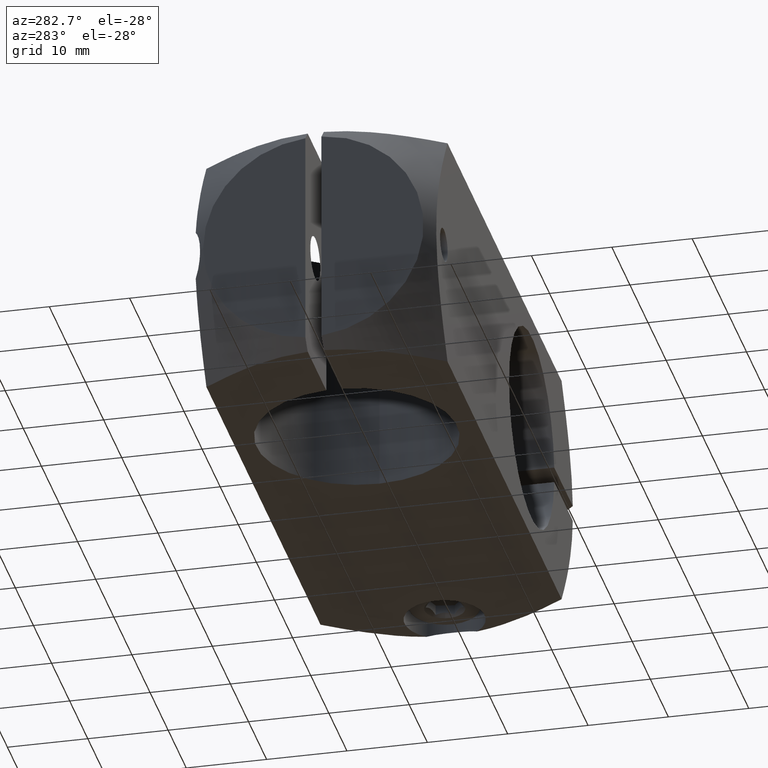
[diagram: clean part render]
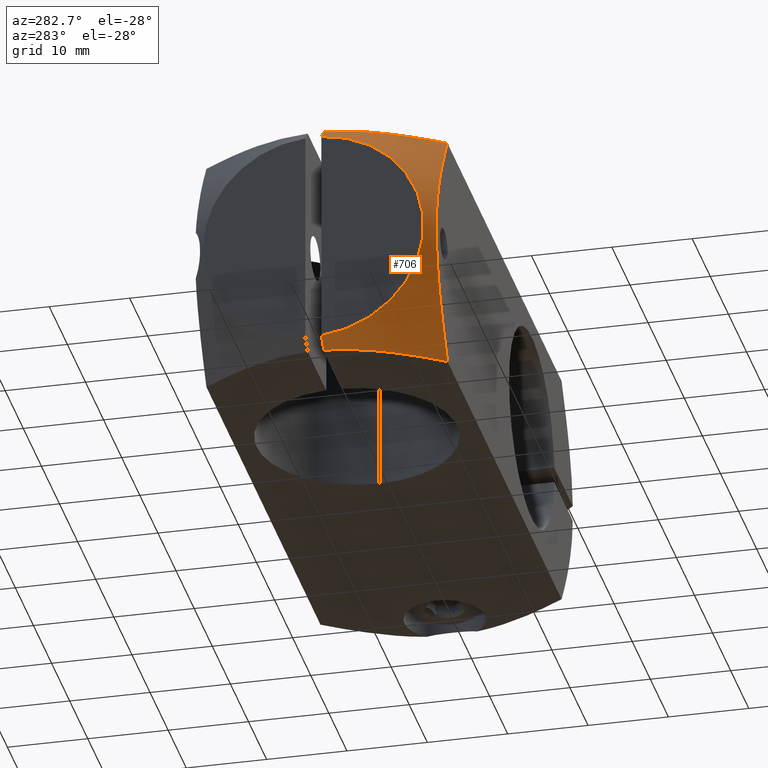
[diagram: same view with one face highlighted and labeled with its STEP entity id]
A machine part, auxiliary view. The second image highlights one B-rep face of the part: STEP entity #706.
In plain terms, the highlighted conical surface has half-angle 45 deg.
Its self-contained STEP definition (entity closure, byte-faithful):
#71 = CARTESIAN_POINT ( 'NONE',  ( -19.23075643469382001, -10.13421942971678646, 63.16369555892573118 ) ) ;
#144 = CARTESIAN_POINT ( 'NONE',  ( -16.08798089569371825, -23.48969352049322978, 88.56406805115727821 ) ) ;
#150 = ORIENTED_EDGE ( 'NONE', *, *, #1954, .F. ) ;
#156 = CARTESIAN_POINT ( 'NONE',  ( -19.09456608968422131, -11.10286215911460417, 93.16369555892569565 ) ) ;
#228 = AXIS2_PLACEMENT_3D ( 'NONE', #287, #330, #1007 ) ;
#244 = CARTESIAN_POINT ( 'NONE',  ( -19.28395444628326771, -9.489658271507050102, 63.16369555892571697 ) ) ;
#253 = CARTESIAN_POINT ( 'NONE',  ( -18.18715098107058381, -14.53567931633557642, 63.16369555892573118 ) ) ;
#284 = CARTESIAN_POINT ( 'NONE',  ( -18.93373410550602998, -23.48969352049323689, 81.59341561462726133 ) ) ;
#287 = CARTESIAN_POINT ( 'NONE',  ( -20.60404504437318707, -8.489693520493247547, 78.16369555892570986 ) ) ;
#308 = CARTESIAN_POINT ( 'NONE',  ( -17.05234078955479049, -23.48969352049324399, 69.59749015704443309 ) ) ;
#310 = CARTESIAN_POINT ( 'NONE',  ( -16.84512115654323594, -17.46362567059150095, 93.16369555892572407 ) ) ;
#330 = DIRECTION ( 'NONE',  ( -1.000000000000000000, -2.017409523771872762E-16, -1.127807741219663211E-16 ) ) ;
#332 = CARTESIAN_POINT ( 'NONE',  ( -20.60404504437318707, -9.489658271507050102, 91.84039175949929756 ) ) ;
#347 = VERTEX_POINT ( 'NONE', #244 ) ;
#380 = CARTESIAN_POINT ( 'NONE',  ( -13.10404504437317996, -23.48969352049323334, 63.16369555892567433 ) ) ;
#434 = DIRECTION ( 'NONE',  ( 1.000000000000000000, 2.017409523771872762E-16, 1.127807741219663211E-16 ) ) ;
#455 = ORIENTED_EDGE ( 'NONE', *, *, #2237, .F. ) ;
#472 = CARTESIAN_POINT ( 'NONE',  ( -20.16406686450731200, -9.489658271507050102, 64.04584674377032627 ) ) ;
#479 = VERTEX_POINT ( 'NONE', #508 ) ;
#483 = CARTESIAN_POINT ( 'NONE',  ( -18.91037143832029699, -12.06267895146951474, 93.16369555892573828 ) ) ;
#508 = CARTESIAN_POINT ( 'NONE',  ( -13.10404504437317996, -23.48969352049323334, 63.16369555892567433 ) ) ;
#646 = CARTESIAN_POINT ( 'NONE',  ( -13.10404504437318707, -23.48969352049328307, 93.16369555892569565 ) ) ;
#659 = CARTESIAN_POINT ( 'NONE',  ( -16.07493411379757120, -23.48969352049323689, 67.76945896387782398 ) ) ;
#706 = ADVANCED_FACE ( 'NONE', ( #2146 ), #825, .T. ) ;
#756 = B_SPLINE_CURVE_WITH_KNOTS ( 'NONE', 3,
 ( #2037, #1704, #1319, #2218, #2028, #830, #310, #1355, #1848, #1507, #483, #156, #1482, #1827, #1172, #983 ),
 .UNSPECIFIED., .F., .F.,
 ( 4, 2, 2, 2, 2, 2, 2, 4 ),
 ( 0.04116296883264590478, 0.04502619078356938365, 0.04695780175903112308, 0.04888941273449286251, 0.05275263468541632750, 0.05468424566087806693, 0.05565005114860892971, 0.05661585663633979248 ),
 .UNSPECIFIED. ) ;
#789 = CARTESIAN_POINT ( 'NONE',  ( -16.84512115654324305, -17.46362567059148319, 63.16369555892573118 ) ) ;
#797 = CARTESIAN_POINT ( 'NONE',  ( -18.75152712022383739, -12.68911683556057035, 63.16369555892571697 ) ) ;
#804 = CARTESIAN_POINT ( 'NONE',  ( -19.26952282696359475, -23.48969352049324399, 79.54082806754804835 ) ) ;
#825 = CONICAL_SURFACE ( 'NONE', #1014, 21.21320343559644428, 0.7853981633974482790 ) ;
#830 = CARTESIAN_POINT ( 'NONE',  ( -16.54239402288973437, -18.03775945732613195, 93.16369555892570986 ) ) ;
#832 = CARTESIAN_POINT ( 'NONE',  ( -19.28395444628327482, -9.489658271507050102, 93.16369555892570986 ) ) ;
#840 = CARTESIAN_POINT ( 'NONE',  ( -19.07068434195346285, -23.48969352049324755, 80.91472866774033434 ) ) ;
#858 = CARTESIAN_POINT ( 'NONE',  ( -20.16406659355164877, -9.489658271507050102, 92.28154464576005012 ) ) ;
#883 = B_SPLINE_CURVE_WITH_KNOTS ( 'NONE', 3,
 ( #2015, #1506, #472, #2192 ),
 .UNSPECIFIED., .F., .F.,
 ( 4, 4 ),
 ( 9.888395924851501987E-07, 0.001870126274407347489 ),
 .UNSPECIFIED. ) ;
#943 = EDGE_CURVE ( 'NONE', #347, #2239, #883, .T. ) ;
#983 = CARTESIAN_POINT ( 'NONE',  ( -19.28395444628327482, -9.489658271507050102, 93.16369555892570986 ) ) ;
#1003 = CARTESIAN_POINT ( 'NONE',  ( -19.31697803404255609, -23.48969352049324044, 78.85493117571076027 ) ) ;
#1007 = DIRECTION ( 'NONE',  ( 2.530004727376607490E-16, -1.000000000000000000, 0.000000000000000000 ) ) ;
#1014 = AXIS2_PLACEMENT_3D ( 'NONE', #1640, #434, #1453 ) ;
#1059 = CARTESIAN_POINT ( 'NONE',  ( -20.60404504437318707, -9.489658271507050102, 91.84039175949929756 ) ) ;
#1116 = CARTESIAN_POINT ( 'NONE',  ( -17.69489535768492416, -15.72347008851798122, 63.16369555892571697 ) ) ;
#1117 = ORIENTED_EDGE ( 'NONE', *, *, #1768, .F. ) ;
#1134 = CARTESIAN_POINT ( 'NONE',  ( -18.91037143832027922, -12.06267895146950941, 63.16369555892571697 ) ) ;
#1155 = CARTESIAN_POINT ( 'NONE',  ( -19.31751661004394194, -23.48969352049324044, 77.48424769733271944 ) ) ;
#1158 = B_SPLINE_CURVE_WITH_KNOTS ( 'NONE', 3,
 ( #332, #858, #2234, #832 ),
 .UNSPECIFIED., .F., .F.,
 ( 4, 4 ),
 ( 0.03956520033644173734, 0.04145065740465224413 ),
 .UNSPECIFIED. ) ;
#1172 = CARTESIAN_POINT ( 'NONE',  ( -19.26252145620419398, -9.811878071308226978, 93.16369555892573828 ) ) ;
#1180 = CARTESIAN_POINT ( 'NONE',  ( -16.76147640109827108, -23.48969352049323689, 87.35124132136520814 ) ) ;
#1230 = CARTESIAN_POINT ( 'NONE',  ( -19.28395444628327482, -9.489658271507050102, 93.16369555892570986 ) ) ;
#1252 = CARTESIAN_POINT ( 'NONE',  ( -14.56348702612061707, -21.37208450014082928, 63.16369555892573118 ) ) ;
#1272 = B_SPLINE_CURVE_WITH_KNOTS ( 'NONE', 3,
 ( #380, #1600, #1252, #1934, #1959, #1790, #789, #1116, #253, #797, #1134, #1472, #1800, #71, #1623, #2156 ),
 .UNSPECIFIED., .F., .F.,
 ( 4, 2, 2, 2, 2, 2, 2, 4 ),
 ( 0.04116296883264594642, 0.04502619078356940446, 0.04695780175903113696, 0.04888941273449286251, 0.05275263468541632750, 0.05468424566087806693, 0.05565005114860892971, 0.05661585663633979942 ),
 .UNSPECIFIED. ) ;
#1316 = CARTESIAN_POINT ( 'NONE',  ( -16.73795339544827243, -23.48969352049323689, 68.98275134668577380 ) ) ;
#1319 = CARTESIAN_POINT ( 'NONE',  ( -14.56348702612060464, -21.37208450014085770, 93.16369555892570986 ) ) ;
#1327 = CARTESIAN_POINT ( 'NONE',  ( -18.94613330604531498, -23.48969352049324044, 74.74534115799069411 ) ) ;
#1342 = CARTESIAN_POINT ( 'NONE',  ( -15.72835441112407295, -23.48969352049323334, 67.17450752139588133 ) ) ;
#1351 = CARTESIAN_POINT ( 'NONE',  ( -19.08543292920531442, -23.48969352049324399, 75.43096249967875622 ) ) ;
#1355 = CARTESIAN_POINT ( 'NONE',  ( -17.69489535768491351, -15.72347008851799899, 93.16369555892569565 ) ) ;
#1453 = DIRECTION ( 'NONE',  ( -1.635512977795597602E-16, 1.000000000000000000, 0.000000000000000000 ) ) ;
#1472 = CARTESIAN_POINT ( 'NONE',  ( -19.09456608968420710, -11.10286215911460950, 63.16369555892570276 ) ) ;
#1479 = CARTESIAN_POINT ( 'NONE',  ( -19.12919287430330684, -23.48969352049323689, 80.57048693653919713 ) ) ;
#1482 = CARTESIAN_POINT ( 'NONE',  ( -19.14690413195883423, -10.77914124235996951, 93.16369555892573828 ) ) ;
#1490 = CARTESIAN_POINT ( 'NONE',  ( -20.60404504437318707, -9.489658271507050102, 64.48699935835210795 ) ) ;
#1502 = CARTESIAN_POINT ( 'NONE',  ( -14.65574553332553265, -23.48969352049323689, 90.90874359488579159 ) ) ;
#1506 = CARTESIAN_POINT ( 'NONE',  ( -19.72403208669276964, -9.489658271507050102, 63.60474999665417783 ) ) ;
#1507 = CARTESIAN_POINT ( 'NONE',  ( -18.75152712022382673, -12.68911683556057923, 93.16369555892569565 ) ) ;
#1514 = CARTESIAN_POINT ( 'NONE',  ( -18.41746166372543669, -23.48969352049322978, 83.59017135445326119 ) ) ;
#1522 = CARTESIAN_POINT ( 'NONE',  ( -17.92661269750189490, -23.48969352049324399, 71.46561441070045362 ) ) ;
#1527 = CARTESIAN_POINT ( 'NONE',  ( -13.10404504437318707, -23.48969352049328307, 93.16369555892569565 ) ) ;
#1600 = CARTESIAN_POINT ( 'NONE',  ( -13.84615402420302388, -22.44019293645905577, 63.16369555892573118 ) ) ;
#1623 = CARTESIAN_POINT ( 'NONE',  ( -19.26252145620419398, -9.811878071308221649, 63.16369555892574539 ) ) ;
#1626 = VERTEX_POINT ( 'NONE', #1527 ) ;
#1634 = EDGE_LOOP ( 'NONE', ( #1117, #455, #1944, #1857, #150, #1801 ) ) ;
#1640 = CARTESIAN_POINT ( 'NONE',  ( -13.10404504437318707, -8.489693520493245771, 78.16369555892570986 ) ) ;
#1646 = EDGE_CURVE ( 'NONE', #2044, #2067, #1158, .T. ) ;
#1649 = CARTESIAN_POINT ( 'NONE',  ( -18.85520218227048872, -23.48969352049324399, 81.92900954112319312 ) ) ;
#1657 = CARTESIAN_POINT ( 'NONE',  ( -14.65423390939095327, -23.48969352049324044, 65.41633402453393842 ) ) ;
#1679 = CARTESIAN_POINT ( 'NONE',  ( -13.10404504437317996, -23.48969352049323334, 63.16369555892567433 ) ) ;
#1704 = CARTESIAN_POINT ( 'NONE',  ( -13.84615402420300434, -22.44019293645908419, 93.16369555892570986 ) ) ;
#1768 = EDGE_CURVE ( 'NONE', #479, #347, #1272, .T. ) ;
#1790 = CARTESIAN_POINT ( 'NONE',  ( -16.54239402288974858, -18.03775945732609642, 63.16369555892570276 ) ) ;
#1800 = CARTESIAN_POINT ( 'NONE',  ( -19.14690413195882002, -10.77914124235996951, 63.16369555892571697 ) ) ;
#1801 = ORIENTED_EDGE ( 'NONE', *, *, #943, .F. ) ;
#1822 = CARTESIAN_POINT ( 'NONE',  ( -18.42045004979232203, -23.48969352049324399, 72.74483398004507251 ) ) ;
#1827 = CARTESIAN_POINT ( 'NONE',  ( -19.23075643469383067, -10.13421942971678114, 93.16369555892572407 ) ) ;
#1834 = CARTESIAN_POINT ( 'NONE',  ( -19.27060397837844263, -23.48969352049324044, 76.79946106373806458 ) ) ;
#1848 = CARTESIAN_POINT ( 'NONE',  ( -18.18715098107056960, -14.53567931633559240, 93.16369555892569565 ) ) ;
#1857 = ORIENTED_EDGE ( 'NONE', *, *, #1646, .F. ) ;
#1934 = CARTESIAN_POINT ( 'NONE',  ( -15.58060888693409574, -19.72570213937301276, 63.16369555892571697 ) ) ;
#1944 = ORIENTED_EDGE ( 'NONE', *, *, #1992, .T. ) ;
#1954 = EDGE_CURVE ( 'NONE', #2239, #2044, #2166, .T. ) ;
#1959 = CARTESIAN_POINT ( 'NONE',  ( -15.90972013830120169, -19.16945062508423803, 63.16369555892573118 ) ) ;
#1985 = B_SPLINE_CURVE_WITH_KNOTS ( 'NONE', 3,
 ( #646, #2213, #1502, #144, #1180, #2190, #1514, #1649, #284, #840, #1479, #804, #1003, #1155, #1834, #1351, #1327, #1822, #1522, #308, #1316, #659, #1342, #1657, #2001, #1679 ),
 .UNSPECIFIED., .F., .F.,
 ( 4, 2, 2, 2, 2, 2, 2, 2, 2, 2, 2, 2, 4 ),
 ( 0.04116296883264593254, 0.04527458552200145508, 0.04938620221135697763, 0.05349781890071250018, 0.05452572307305140337, 0.05555362724539030655, 0.05760943559006806436, 0.05966524393474582910, 0.06172105227942359384, 0.06583266896877915109, 0.06788847731345692971, 0.06994428565813470833, 0.07405590234749022394 ),
 .UNSPECIFIED. ) ;
#1992 = EDGE_CURVE ( 'NONE', #1626, #2067, #756, .T. ) ;
#2001 = CARTESIAN_POINT ( 'NONE',  ( -13.89291430987564446, -23.48969352049322978, 64.27932517313855953 ) ) ;
#2015 = CARTESIAN_POINT ( 'NONE',  ( -19.28395444628326771, -9.489658271507050102, 63.16369555892571697 ) ) ;
#2028 = CARTESIAN_POINT ( 'NONE',  ( -15.90972013830118570, -19.16945062508427711, 93.16369555892572407 ) ) ;
#2037 = CARTESIAN_POINT ( 'NONE',  ( -13.10404504437318707, -23.48969352049328307, 93.16369555892569565 ) ) ;
#2044 = VERTEX_POINT ( 'NONE', #1059 ) ;
#2067 = VERTEX_POINT ( 'NONE', #1230 ) ;
#2146 = FACE_OUTER_BOUND ( 'NONE', #1634, .T. ) ;
#2156 = CARTESIAN_POINT ( 'NONE',  ( -19.28395444628326771, -9.489658271507050102, 63.16369555892571697 ) ) ;
#2166 = CIRCLE ( 'NONE', #228, 13.71320343559644606 ) ;
#2190 = CARTESIAN_POINT ( 'NONE',  ( -17.92473578314054450, -23.48969352049324399, 84.86595908458204462 ) ) ;
#2192 = CARTESIAN_POINT ( 'NONE',  ( -20.60404504437318707, -9.489658271507050102, 64.48699935835210795 ) ) ;
#2213 = CARTESIAN_POINT ( 'NONE',  ( -13.89386962746751486, -23.48969352049323689, 92.04671492161808999 ) ) ;
#2218 = CARTESIAN_POINT ( 'NONE',  ( -15.58060888693408330, -19.72570213937304118, 93.16369555892572407 ) ) ;
#2234 = CARTESIAN_POINT ( 'NONE',  ( -19.72403183952946293, -9.489658271507050102, 92.72264136890916575 ) ) ;
#2237 = EDGE_CURVE ( 'NONE', #1626, #479, #1985, .T. ) ;
#2239 = VERTEX_POINT ( 'NONE', #1490 ) ;